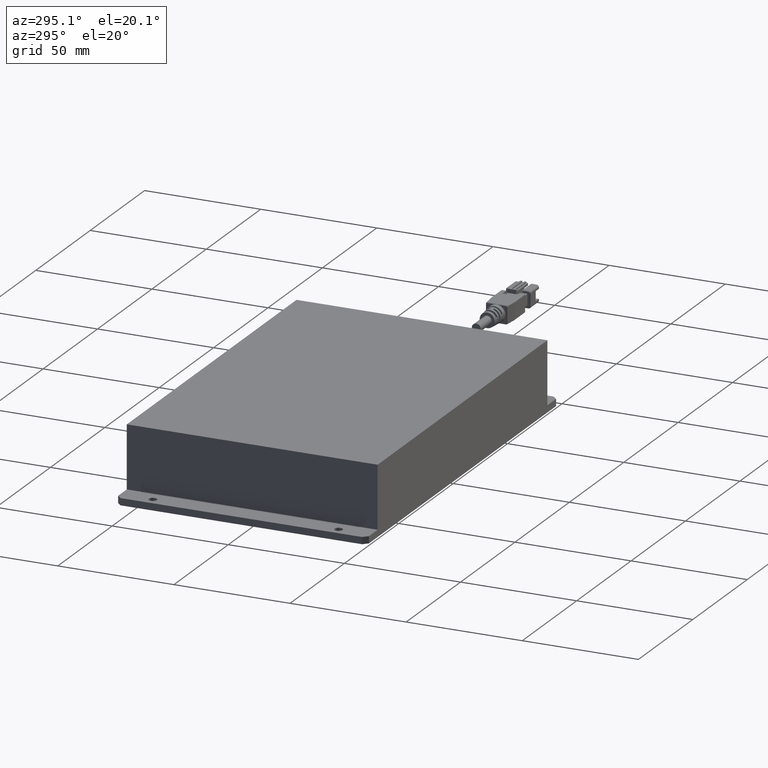
[diagram: clean part render]
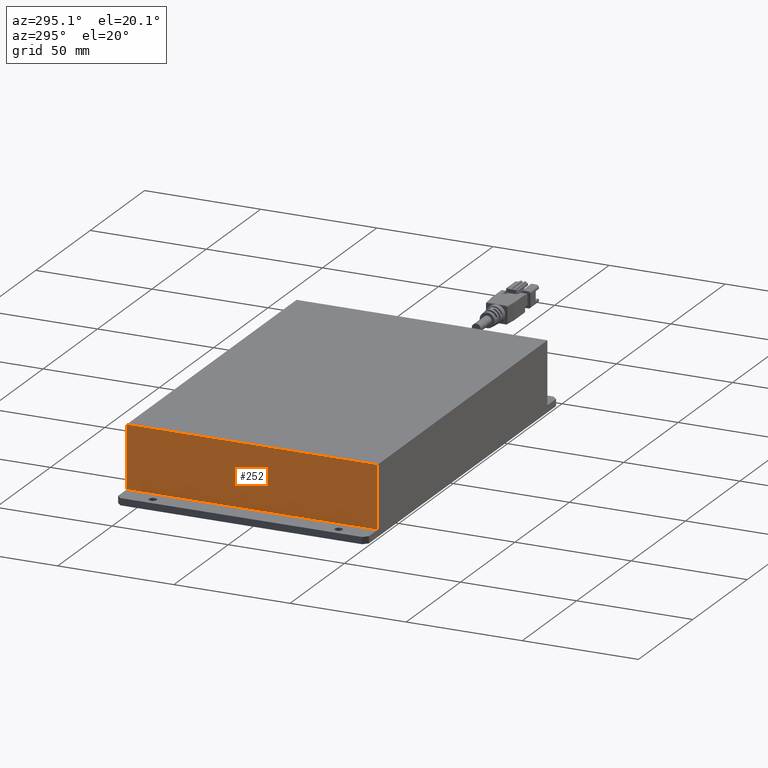
[diagram: same view with one face highlighted and labeled with its STEP entity id]
A machine part, auxiliary view. The second image highlights one B-rep face of the part: STEP entity #252.
In plain terms, the highlighted planar face has unit normal (1, 0, 0).
Its self-contained STEP definition (entity closure, byte-faithful):
#252=ADVANCED_FACE('0:8840',(#642),#643,.F.);
#642=FACE_OUTER_BOUND('',#1205,.T.);
#643=PLANE('',#1206);
#1205=EDGE_LOOP('',(#2141,#2142,#2143,#2144));
#1206=AXIS2_PLACEMENT_3D('',#2145,#2146,#2147);
#2141=ORIENTED_EDGE('',*,*,#3701,.F.);
#2142=ORIENTED_EDGE('',*,*,#3702,.F.);
#2143=ORIENTED_EDGE('',*,*,#3703,.T.);
#2144=ORIENTED_EDGE('',*,*,#3704,.T.);
#2145=CARTESIAN_POINT('',(-0.078,-0.054,0.003));
#2146=DIRECTION('',(1.0,0.0,0.0));
#2147=DIRECTION('',(0.0,1.0,0.0));
#3701=EDGE_CURVE('0:8921',#4320,#4321,#4322,.T.);
#3702=EDGE_CURVE('0:8900',#4323,#4320,#4324,.T.);
#3703=EDGE_CURVE('0:8912',#4323,#4325,#4326,.T.);
#3704=EDGE_CURVE('0:8903',#4325,#4321,#4327,.F.);
#4320=VERTEX_POINT('',#5223);
#4321=VERTEX_POINT('',#5224);
#4322=LINE('',#5225,#5226);
#4323=VERTEX_POINT('',#5227);
#4324=LINE('',#5228,#5229);
#4325=VERTEX_POINT('',#5230);
#4326=LINE('',#5231,#5232);
#4327=LINE('',#5233,#5234);
#5223=CARTESIAN_POINT('',(-0.078,-0.054,0.003));
#5224=CARTESIAN_POINT('',(-0.078,0.054,0.003));
#5225=CARTESIAN_POINT('',(-0.078,-0.054,0.003));
#5226=VECTOR('',#6566,1.0);
#5227=CARTESIAN_POINT('',(-0.078,-0.054,0.03));
#5228=CARTESIAN_POINT('',(-0.078,-0.054,0.003));
#5229=VECTOR('',#6567,1.0);
#5230=CARTESIAN_POINT('',(-0.078,0.054,0.03));
#5231=CARTESIAN_POINT('',(-0.078,0.0,0.03));
#5232=VECTOR('',#6568,1.0);
#5233=CARTESIAN_POINT('',(-0.078,0.054,0.003));
#5234=VECTOR('',#6569,1.0);
#6566=DIRECTION('',(0.0,1.0,0.0));
#6567=DIRECTION('',(0.0,0.0,-1.0));
#6568=DIRECTION('',(0.0,1.0,0.0));
#6569=DIRECTION('',(0.0,0.0,1.0));